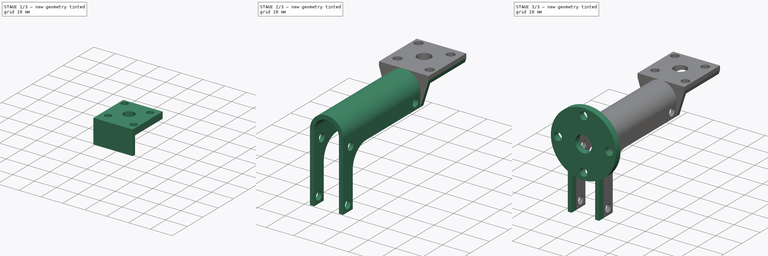
[diagram: build sequence overview — one tinted view per stage of 3, left to right]
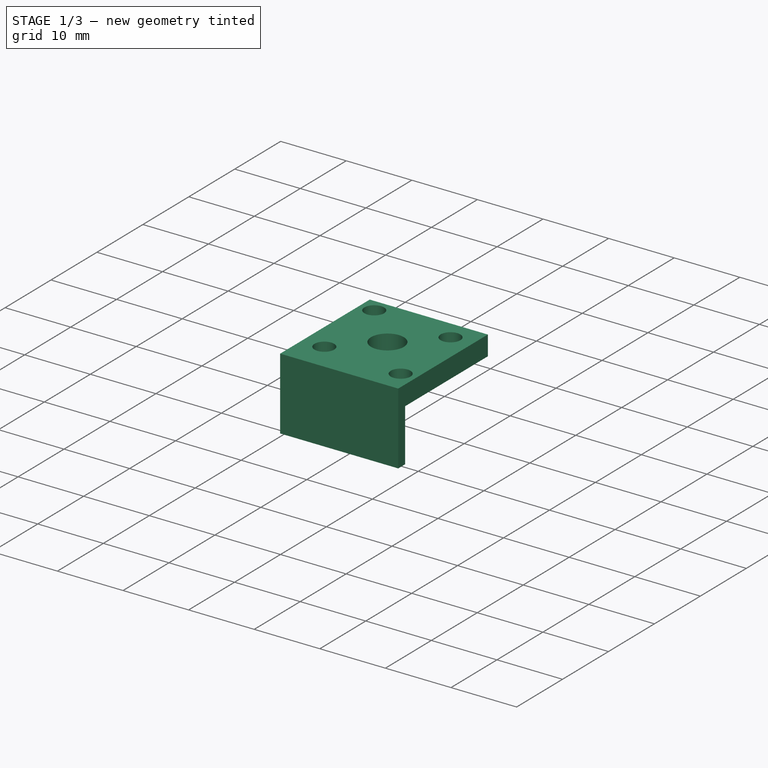
[diagram: stage 1 of 3 — iso view after this stage's code; geometry added in this stage tinted green]
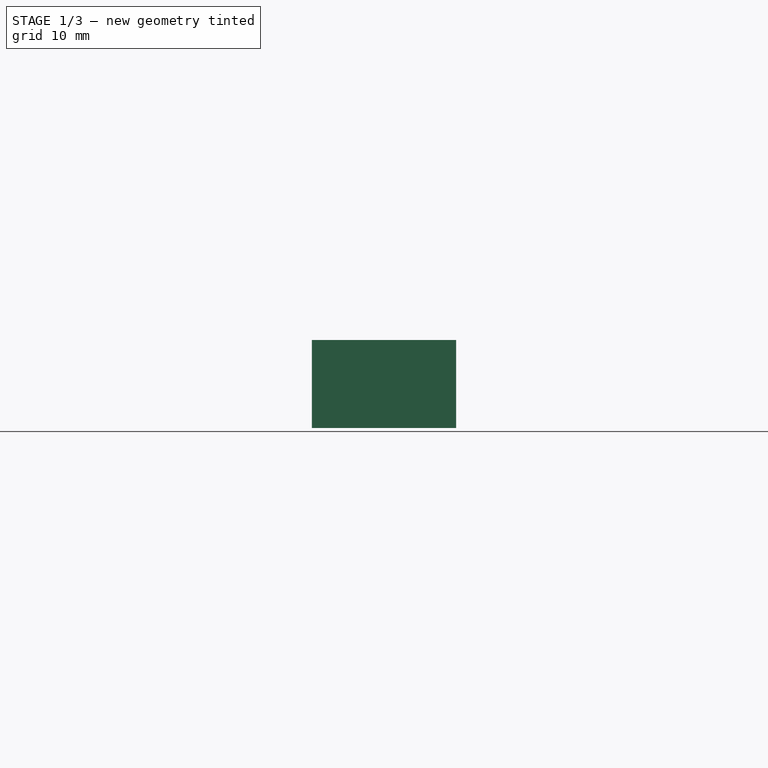
[diagram: stage 1 of 3 — front view after this stage's code; geometry added in this stage tinted green]
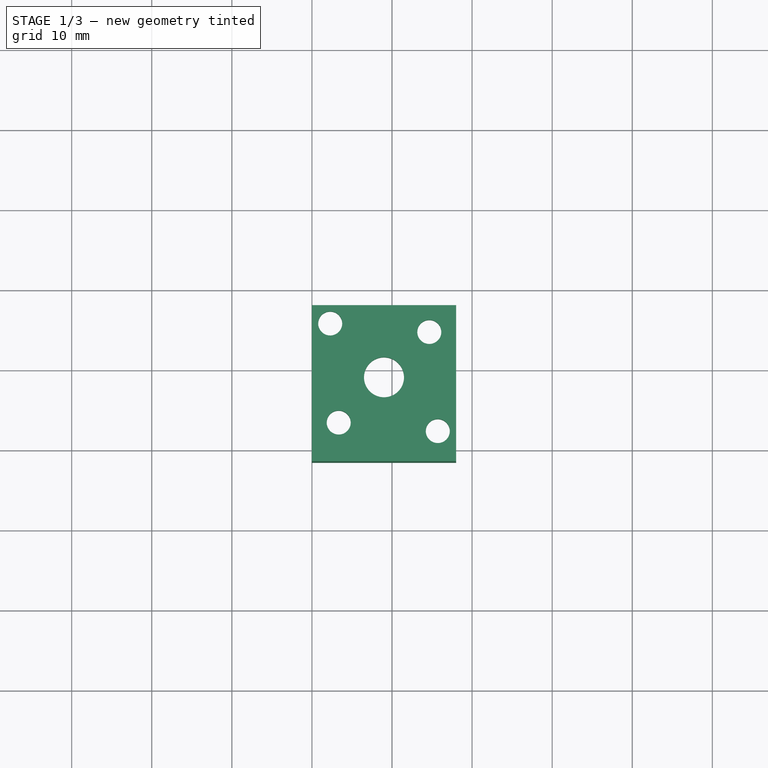
[diagram: stage 1 of 3 — top view after this stage's code; geometry added in this stage tinted green]
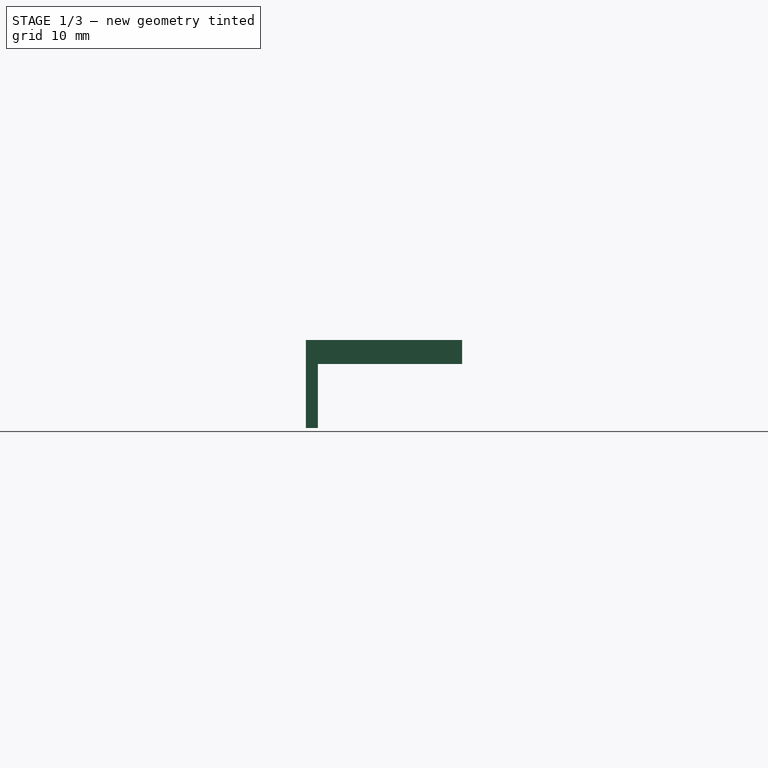
[diagram: stage 1 of 3 — right view after this stage's code; geometry added in this stage tinted green]
FCSTD DOCUMENT  (FreeCAD 0.16R6706 (Git))
Label: Support_20170119
License: All rights reserved
LicenseURL: http://en.wikipedia.org/wiki/All_rights_reserved
objects: Sketcher::SketchObject×7, PartDesign::Pad×4, PartDesign::Pocket×3
note: 21 computed .brp shape members not serialized (recipe doc carries the construction recipe); baked Part::Feature solids carry a one-line shape summary decoded from their .brp

FEATURE [Sketcher::SketchObject] Sketch  label="Sketch_SocleMoteur"
  sketch-geometry (17):
    g0: LineSegment StartX=0 StartY=0 StartZ=0 EndX=18 EndY=0 EndZ=0
    g1: LineSegment StartX=18 StartY=0 StartZ=0 EndX=18 EndY=18 EndZ=0
    g2: LineSegment StartX=18 StartY=18 StartZ=0 EndX=0 EndY=18 EndZ=0
    g3: LineSegment StartX=0 StartY=7.5 StartZ=0 EndX=0 EndY=0 EndZ=0
    g4: LineSegment StartX=0 StartY=10.5 StartZ=0 EndX=0 EndY=18 EndZ=0
    g5: Circle CenterX=2.28249 CenterY=15.7175 CenterZ=0 NormalX=0 NormalY=0 NormalZ=1 Radius=1.5
    g6: Circle CenterX=14.6569 CenterY=14.6569 CenterZ=0 NormalX=0 NormalY=0 NormalZ=1 Radius=1.5
    g7: Circle CenterX=3.34315 CenterY=3.34315 CenterZ=0 NormalX=0 NormalY=0 NormalZ=1 Radius=1.5
    g8: Circle CenterX=15.7175 CenterY=2.28249 CenterZ=0 NormalX=0 NormalY=0 NormalZ=1 Radius=1.5
    g9: GeomPoint [constr] X=9 Y=9 Z=0
    g10: LineSegment [constr] StartX=2.28249 StartY=15.7175 StartZ=0 EndX=9 EndY=9 EndZ=0
    g11: LineSegment [constr] StartX=9 StartY=9 StartZ=0 EndX=14.6569 EndY=14.6569 EndZ=0
    g12: LineSegment [constr] StartX=9 StartY=9 StartZ=0 EndX=3.34315 EndY=3.34315 EndZ=0
    g13: LineSegment [constr] StartX=15.7175 StartY=2.28249 StartZ=0 EndX=9 EndY=9 EndZ=0
    g14: LineSegment [constr] StartX=9 StartY=9 StartZ=0 EndX=30.0425 EndY=9 EndZ=0
    g15: Circle CenterX=9 CenterY=9 CenterZ=0 NormalX=0 NormalY=0 NormalZ=1 Radius=2.5
    g16: LineSegment StartX=0 StartY=10.5 StartZ=0 EndX=0 EndY=7.5 EndZ=0
  constraints (42):
    c: Coincident(g0,g1)
    c: Coincident(g1,g2)
    c: Horizontal(g0)
    c: Horizontal(g2)
    c: Vertical(g1)
    c: Coincident(g0,g-1)
    c: Distance(g2) = 18
    c: Distance(g1) = 18
    c: Coincident(g3,g-1)
    c: Vertical(g3)
    c: Coincident(g4,g2)
    c: Vertical(g4)
    c: Distance(g4) = 7.5
    c: DistanceX(g9,g1) = 9
    c: DistanceY(g9,g1) = 9
    c: Distance(g6,g9) = 8
    c: Radius(g6) = 1.5
    c: Radius(g5) = 1.5
    c: Radius(g7) = 1.5
    c: Radius(g8) = 1.5
    c: Distance(g8,g9) = 9.5
    c: Distance(g7,g9) = 8
    c: Distance(g9,g5) = 9.5
    c: Coincident(g10,g5)
    c: Coincident(g10,g9)
    c: Coincident(g11,g9)
    c: Coincident(g11,g6)
    c: Coincident(g12,g9)
    c: Coincident(g12,g7)
    c: Coincident(g13,g8)
    c: Coincident(g13,g9)
    c: Angle(g10,g12) = 1.5708
    c: Angle(g12,g13) = 1.5708
    c: Angle(g13,g11) = 1.5708
    c: Coincident(g14,g9)
    c: Horizontal(g14)
    c: Angle(g14,g11) = 0.785398
    c: Coincident(g15,g9)
    c: Radius(g15) = 2.5
    c: Coincident(g16,g4)
    c: Vertical(g16)
    c: Coincident(g3,g16)
FEATURE [PartDesign::Pad] Pad  label="SocleMoteur"
  Length = 3
  Length2 = 100
  Sketch = -> Sketch
  Type = 0
FEATURE [Sketcher::SketchObject] Sketch002  label="Sketch_Epaulement"
  ExternalGeometry = -> [Pad]
  Placement = pos=(0,0,0) rot=(1,0,0;1.5708rad)
  Support = -> Pad [Face1]
  sketch-geometry (4):
    g0: LineSegment StartX=0 StartY=3 StartZ=0 EndX=18 EndY=3 EndZ=0
    g1: LineSegment StartX=18 StartY=3 StartZ=0 EndX=18 EndY=-7.99885 EndZ=0
    g2: LineSegment StartX=18 StartY=-7.99885 StartZ=0 EndX=0 EndY=-8 EndZ=0
    g3: LineSegment StartX=0 StartY=-8 StartZ=0 EndX=0 EndY=3 EndZ=0
  constraints (9):
    c: Coincident(g3,g0)
    c: Coincident(g0,g-3)
    c: Coincident(g0,g-3)
    c: Coincident(g0,g1)
    c: Distance(g3) = 11
    c: Coincident(g2,g3)
    c: Coincident(g2,g1)
    c: Distance(g2) = 18
    c: PointOnObject(g-1,g3)
FEATURE [PartDesign::Pad] Pad001  label="Epaulement"
  Length = 1.5
  Length2 = 100
  Sketch = -> Sketch002
  Type = 0
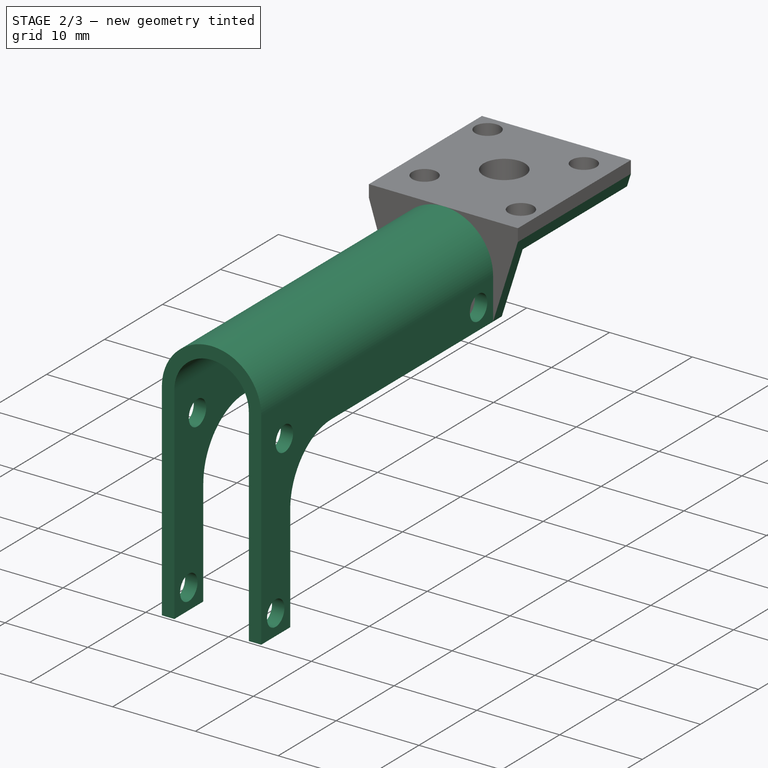
[diagram: stage 2 of 3 — iso view after this stage's code; geometry added in this stage tinted green]
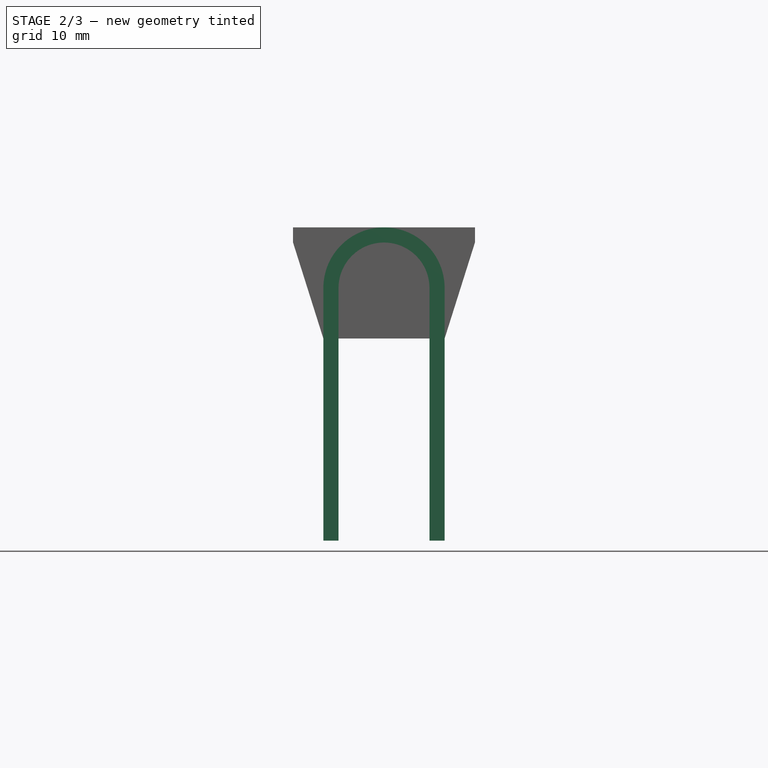
[diagram: stage 2 of 3 — front view after this stage's code; geometry added in this stage tinted green]
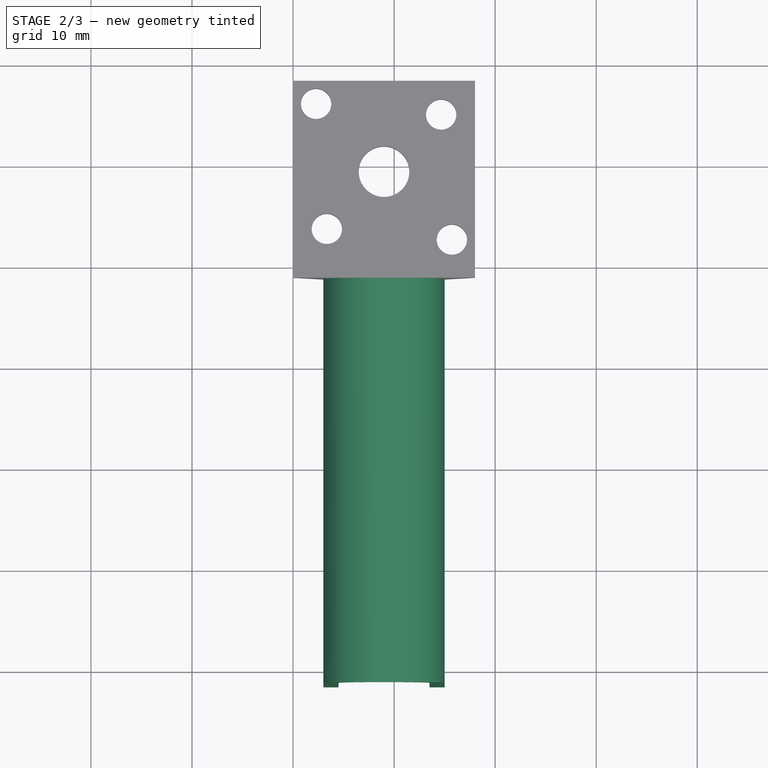
[diagram: stage 2 of 3 — top view after this stage's code; geometry added in this stage tinted green]
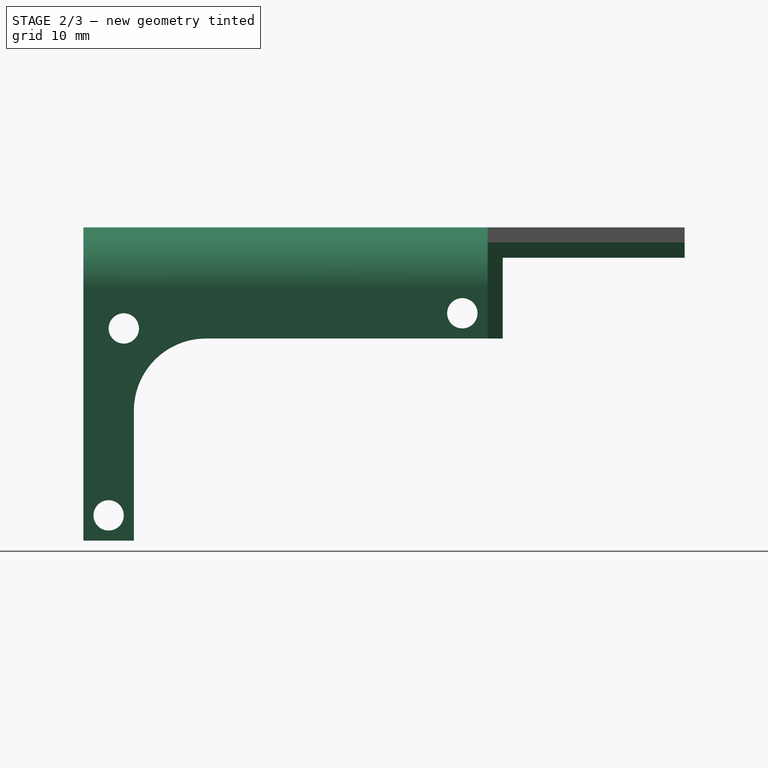
[diagram: stage 2 of 3 — right view after this stage's code; geometry added in this stage tinted green]
FEATURE [Sketcher::SketchObject] Sketch001  label="Sketch_SupportAile"
  ExternalGeometry = -> [Pad001]
  Placement = pos=(0,-1.5,0) rot=(1,0,0;1.5708rad)
  Support = -> Pad001 [Face17]
  sketch-geometry (8):
    g0: ArcOfCircle CenterX=9 CenterY=-3 CenterZ=0 NormalX=0 NormalY=0 NormalZ=1 Radius=4.5 StartAngle=0 EndAngle=3.14159
    g1: ArcOfCircle CenterX=9 CenterY=-3 CenterZ=0 NormalX=0 NormalY=0 NormalZ=1 Radius=6 StartAngle=0 EndAngle=3.14159
    g2: LineSegment StartX=4.5 StartY=-3 StartZ=0 EndX=4.50013 EndY=-28 EndZ=0
    g3: LineSegment StartX=4.50013 StartY=-28 StartZ=0 EndX=3.00013 EndY=-28 EndZ=0
    g4: LineSegment StartX=3.00013 StartY=-28 StartZ=0 EndX=3 EndY=-3 EndZ=0
    g5: LineSegment StartX=15 StartY=-3 StartZ=0 EndX=15.0001 EndY=-28 EndZ=0
    g6: LineSegment StartX=15.0001 StartY=-28 StartZ=0 EndX=13.5001 EndY=-28 EndZ=0
    g7: LineSegment StartX=13.5001 StartY=-28 StartZ=0 EndX=13.5 EndY=-3 EndZ=0
  constraints (24):
    c: Coincident(g0,g2)
    c: Coincident(g0,g7)
    c: Coincident(g1,g4)
    c: Coincident(g1,g5)
    c: Coincident(g2,g3)
    c: Coincident(g3,g4)
    c: Coincident(g5,g6)
    c: Coincident(g6,g7)
    c: DistanceX(g0,g-4) = 9
    c: DistanceY(g0,g-4) = 6
    c: Radius(g1) = 6
    c: Radius(g0) = 4.5
    c: Coincident(g1,g0)
    c: Distance(g0,g-3) = 6
    c: Distance(g1,g-3) = 6
    c: Distance(g0,g-3) = 6
    c: Distance(g1,g-3) = 6
    c: Distance(g5) = 25
    c: Distance(g3) = 1.5
    c: Distance(g6) = 1.5
    c: Distance(g4) = 25
    c: Parallel(g7,g2)
    c: Parallel(g4,g5)
    c: Parallel(g-3,g3)
FEATURE [PartDesign::Pad] Pad002  label="SupportAile"
  Length = 40
  Length2 = 100
  Sketch = -> Sketch001
  Type = 0
FEATURE [Sketcher::SketchObject] Sketch005  label="Sketch_AlegementSupportAile"
  ExternalGeometry = -> [Pad002]
  Placement = pos=(15,0,7.70469e-05) rot=(0.577349,0.577349,0.577352;2.09439rad)
  Support = -> Pad002 [Face25]
  sketch-geometry (8):
    g0: LineSegment StartX=-36.5 StartY=-28.0001 StartZ=0 EndX=-36.5 EndY=-15.137 EndZ=0
    g1: LineSegment StartX=-29.3632 StartY=-8.00008 StartZ=0 EndX=-1.5 EndY=-8.00008 EndZ=0
    g2: LineSegment StartX=-36.5 StartY=-28.0001 StartZ=0 EndX=-1.5 EndY=-28.0001 EndZ=0
    g3: LineSegment StartX=-1.5 StartY=-28.0001 StartZ=0 EndX=-1.5 EndY=-8.00008 EndZ=0
    g4: ArcOfCircle CenterX=-29.3632 CenterY=-15.1369 CenterZ=0 NormalX=0 NormalY=0 NormalZ=1 Radius=7.13684 StartAngle=1.5708 EndAngle=3.1416
    g5: Circle CenterX=-4 CenterY=-5.50008 CenterZ=0 NormalX=0 NormalY=0 NormalZ=1 Radius=1.5
    g6: Circle CenterX=-37.5 CenterY=-7.00008 CenterZ=0 NormalX=0 NormalY=0 NormalZ=1 Radius=1.5
    g7: Circle CenterX=-39 CenterY=-25.5001 CenterZ=0 NormalX=0 NormalY=0 NormalZ=1 Radius=1.5
  constraints (22):
    c: Coincident(g0,g2)
    c: Coincident(g1,g3)
    c: Coincident(g2,g3)
    c: Coincident(g2,g-4)
    c: Distance(g-5,g1) = 5
    c: Parallel(g1,g-3)
    c: Parallel(g0,g-4)
    c: Distance(g0,g-3) = 5
    c: PointOnObject(g0,g-3)
    c: Tangent(g4,g0)
    c: Coincident(g4,g0)
    c: Tangent(g4,g1)
    c: Coincident(g4,g1)
    c: Radius(g7) = 1.5
    c: DistanceY(g-3,g7) = 2.5
    c: DistanceX(g7,g0) = 2.5
    c: DistanceY(g6,g-5) = 4
    c: DistanceX(g-5,g6) = 4
    c: Radius(g6) = 1.5
    c: Radius(g5) = 1.5
    c: DistanceY(g5,g-5) = 2.5
    c: DistanceX(g5,g-5) = 2.5
FEATURE [PartDesign::Pocket] Pocket  label="AlegementSupportAile"
  Length = 13
  Sketch = -> Sketch005
  Type = 0
FEATURE [Sketcher::SketchObject] Sketch006  label="Sketch_EpaulementBiseau"
  ExternalGeometry = -> [Pad001]
  Placement = pos=(0,-1.5,0) rot=(1,0,0;1.5708rad)
  Support = -> Pocket [Face21]
  sketch-geometry (6):
    g0: LineSegment StartX=0 StartY=1.5 StartZ=0 EndX=3 EndY=-7.99981 EndZ=0
    g1: LineSegment StartX=3 StartY=-7.99981 StartZ=0 EndX=0 EndY=-8 EndZ=0
    g2: LineSegment StartX=0 StartY=-8 StartZ=0 EndX=0 EndY=1.5 EndZ=0
    g3: LineSegment StartX=18 StartY=-7.99885 StartZ=0 EndX=15 EndY=-7.99904 EndZ=0
    g4: LineSegment StartX=15 StartY=-7.99904 StartZ=0 EndX=18 EndY=1.5 EndZ=0
    g5: LineSegment StartX=18 StartY=1.5 StartZ=0 EndX=18 EndY=-7.99885 EndZ=0
  constraints (12):
    c: Coincident(g5,g3)
    c: Coincident(g4,g3)
    c: Coincident(g4,g5)
    c: PointOnObject(g4,g-4)
    c: Distance(g-4,g4) = 1.5
    c: Distance(g3,g3) = 3
    c: Coincident(g1,g0)
    c: Coincident(g2,g1)
    c: Coincident(g2,g0)
    c: PointOnObject(g0,g-2)
    c: Distance(g-3,g0) = 1.5
    c: Distance(g1,g0) = 3
FEATURE [PartDesign::Pocket] Pocket001
  Length = 25
  Sketch = -> Sketch006
  Type = 0
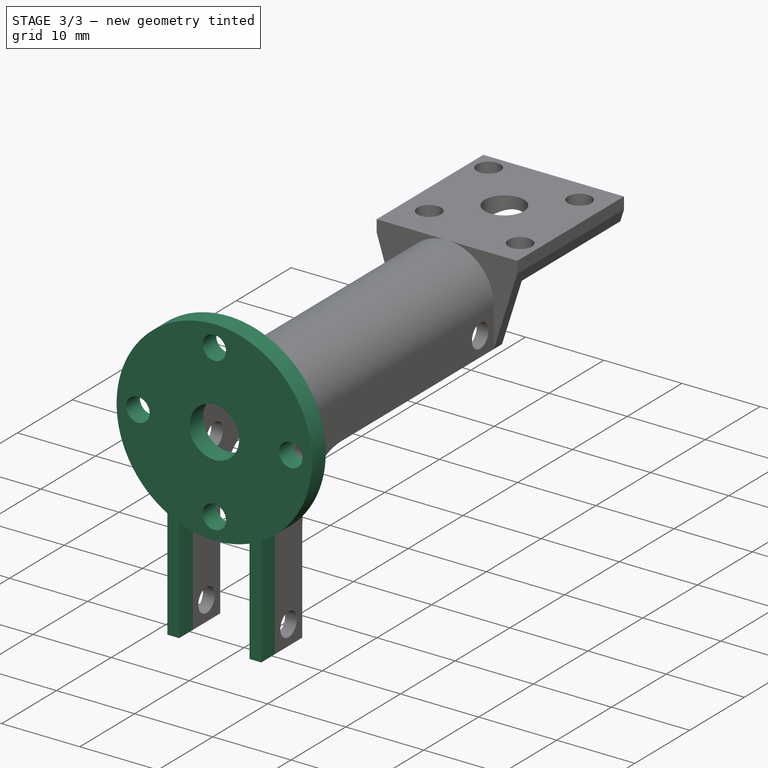
[diagram: stage 3 of 3 — iso view after this stage's code; geometry added in this stage tinted green]
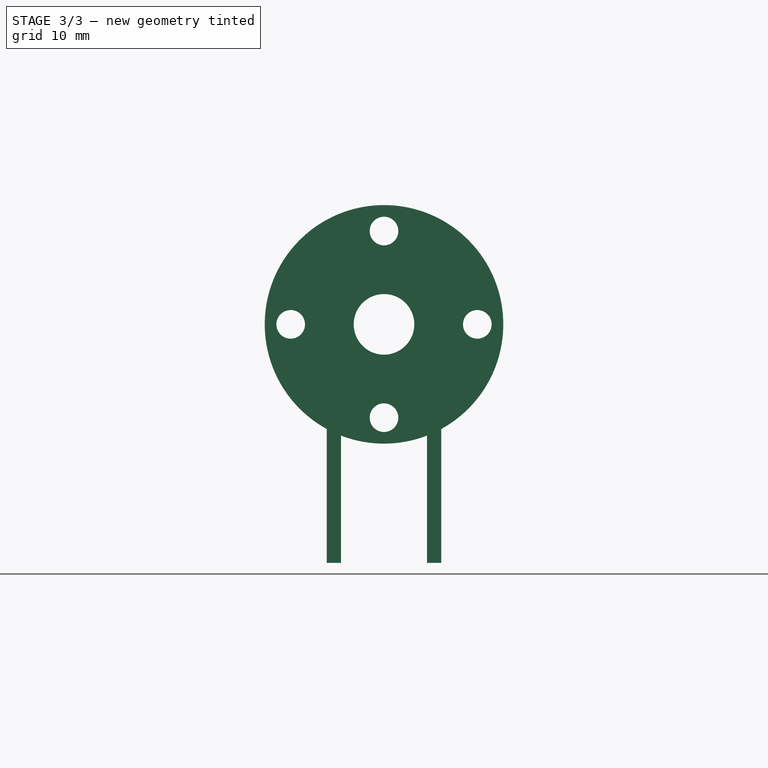
[diagram: stage 3 of 3 — front view after this stage's code; geometry added in this stage tinted green]
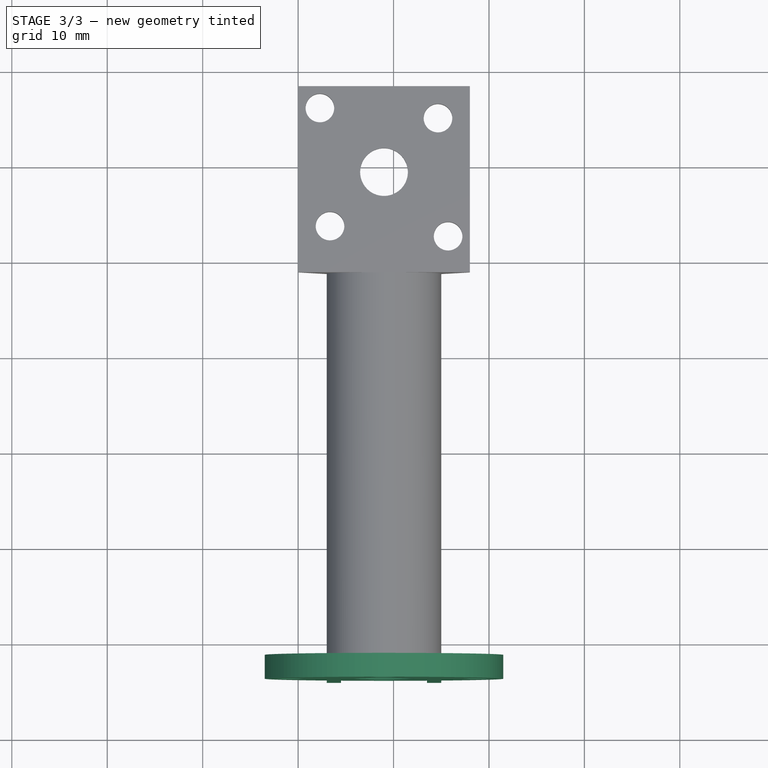
[diagram: stage 3 of 3 — top view after this stage's code; geometry added in this stage tinted green]
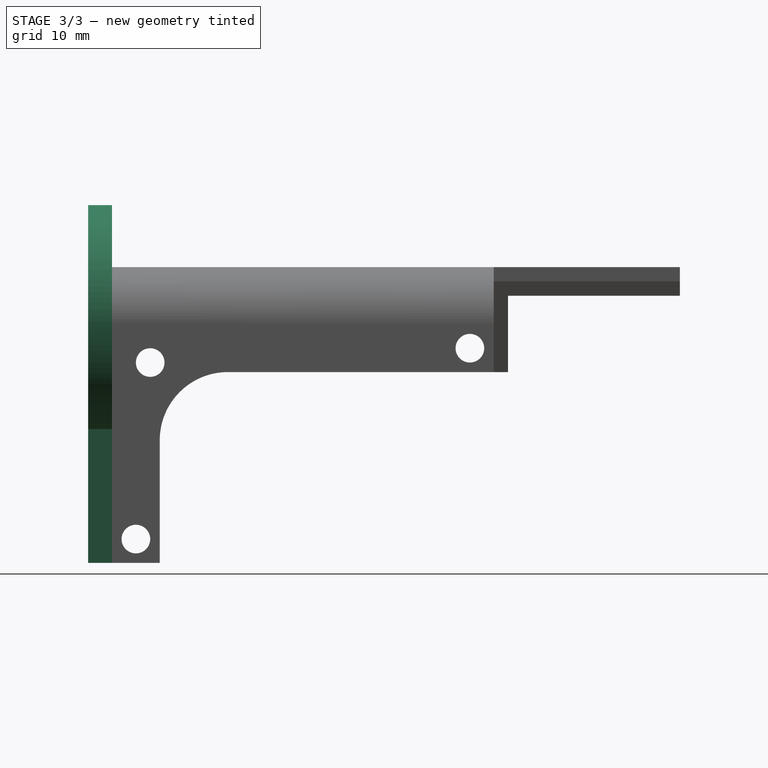
[diagram: stage 3 of 3 — right view after this stage's code; geometry added in this stage tinted green]
FEATURE [Sketcher::SketchObject] Sketch008
  ExternalGeometry = -> [Pocket001]
  Placement = pos=(0,-1.5,0) rot=(1,0,0;1.5708rad)
  Support = -> Pocket001 [Face22]
  sketch-geometry (4):
    g0: LineSegment StartX=4.5 StartY=-2.99971 StartZ=0 EndX=4.50003 EndY=-7.99971 EndZ=0
    g1: LineSegment StartX=13.5 StartY=-2.99914 StartZ=0 EndX=13.5 EndY=-7.99914 EndZ=0
    g2: ArcOfCircle CenterX=9 CenterY=-3 CenterZ=0 NormalX=0 NormalY=0 NormalZ=1 Radius=4.5 StartAngle=0.000192156 EndAngle=3.14153
    g3: LineSegment StartX=4.50003 StartY=-7.99971 StartZ=0 EndX=13.5 EndY=-7.99914 EndZ=0
  constraints (11):
    c: Coincident(g0,g3)
    c: Coincident(g3,g1)
    c: Coincident(g2,g1)
    c: Coincident(g2,g0)
    c: DistanceX(g2,g-4) = 9
    c: Radius(g2) = 4.5
    c: DistanceY(g2,g-4) = 6
    c: Coincident(g1,g-3)
    c: Coincident(g0,g-3)
    c: Distance(g0) = 5
    c: Distance(g1) = 5
FEATURE [PartDesign::Pocket] Pocket002
  Length = 25
  Sketch = -> Sketch008
  Type = 0
FEATURE [Sketcher::SketchObject] Sketch007  label="Sketch_SupportHub"
  ExternalGeometry = -> [Pocket002]
  Placement = pos=(0,-41.5,0) rot=(1,0,0;1.5708rad)
  Support = -> Pocket002 [Face29]
  sketch-geometry (15):
    g0: Circle CenterX=9 CenterY=-3 CenterZ=0 NormalX=0 NormalY=0 NormalZ=1 Radius=3.175
    g1: Circle CenterX=-0.779 CenterY=-3 CenterZ=0 NormalX=0 NormalY=0 NormalZ=1 Radius=1.5
    g2: Circle CenterX=9 CenterY=-12.779 CenterZ=0 NormalX=0 NormalY=0 NormalZ=1 Radius=1.5
    g3: Circle CenterX=9 CenterY=6.779 CenterZ=0 NormalX=0 NormalY=0 NormalZ=1 Radius=1.5
    g4: Circle CenterX=18.779 CenterY=-3 CenterZ=0 NormalX=0 NormalY=0 NormalZ=1 Radius=1.5
    g5: LineSegment [constr] StartX=9 StartY=-12.8878 StartZ=0 EndX=9 EndY=6.779 EndZ=0
    g6: LineSegment [constr] StartX=-0.779 StartY=-3 StartZ=0 EndX=18.779 EndY=-3 EndZ=0
    g7: ArcOfCircle CenterX=9 CenterY=-3 CenterZ=0 NormalX=0 NormalY=0 NormalZ=1 Radius=12.5 StartAngle=5.21305 EndAngle=10.4949
    g8: LineSegment StartX=3.00006 StartY=-13.9659 StartZ=0 EndX=3.00013 EndY=-28 EndZ=0
    g9: LineSegment StartX=15.0001 StartY=-13.9658 StartZ=0 EndX=15.0001 EndY=-28 EndZ=0
    g10: LineSegment StartX=4.50006 StartY=-14.6619 StartZ=0 EndX=4.50013 EndY=-28 EndZ=0
    g11: LineSegment StartX=13.5001 StartY=-14.6619 StartZ=0 EndX=13.5001 EndY=-28 EndZ=0
    g12: LineSegment StartX=3.00013 StartY=-28 StartZ=0 EndX=4.50013 EndY=-28 EndZ=0
    g13: LineSegment StartX=13.5001 StartY=-28 StartZ=0 EndX=15.0001 EndY=-28 EndZ=0
    g14: ArcOfCircle CenterX=9 CenterY=-3 CenterZ=0 NormalX=0 NormalY=0 NormalZ=1 Radius=12.5 StartAngle=4.34413 EndAngle=5.08066
  constraints (38):
    c: Coincident(g7,g8)
    c: Coincident(g7,g9)
    c: Coincident(g8,g12)
    c: Coincident(g9,g13)
    c: Coincident(g10,g12)
    c: Coincident(g11,g13)
    c: PointOnObject(g7,g-3)
    c: PointOnObject(g10,g-4)
    c: PointOnObject(g11,g-5)
    c: PointOnObject(g7,g-6)
    c: Coincident(g-3,g8)
    c: Coincident(g-4,g10)
    c: Coincident(g-5,g11)
    c: Coincident(g-6,g9)
    c: Radius(g7) = 12.5
    c: Radius(g0) = 3.175
    c: Radius(g4) = 1.5
    c: Radius(g2) = 1.5
    c: Radius(g1) = 1.5
    c: Radius(g3) = 1.5
    c: Distance(g4,g1) = 19.558
    c: Distance(g3,g2) = 19.558
    c: PointOnObject(g0,g6)
    c: Symmetric(g2,g3,g6)
    c: Radius(g14) = 12.5
    c: Coincident(g5,g3)
    c: Coincident(g7,g0)
    c: PointOnObject(g14,g5)
    c: PointOnObject(g0,g5)
    c: PointOnObject(g14,g6)
    c: Coincident(g6,g1)
    c: Coincident(g4,g6)
    c: Symmetric(g1,g4,g5)
    c: Coincident(g14,g11)
    c: Coincident(g14,g10)
    c: PointOnObject(g-5,g6)
    c: PointOnObject(g-4,g6)
    c: DistanceX(g0,g-5) = 4.5
FEATURE [PartDesign::Pad] Pad003
  Length = 2.5
  Length2 = 100
  Sketch = -> Sketch007
  Type = 0
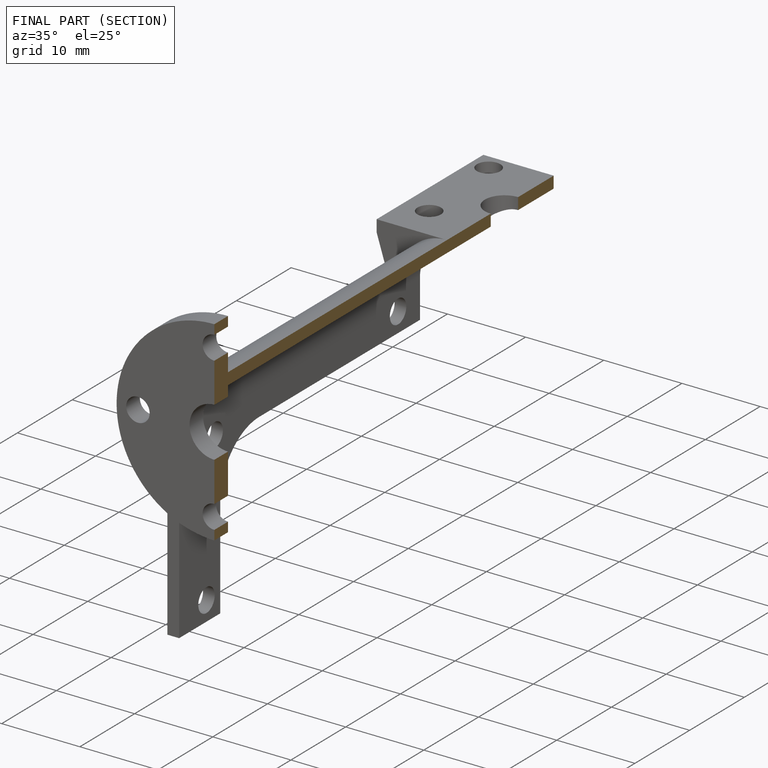
[diagram: finished part — half-section view (interior)]
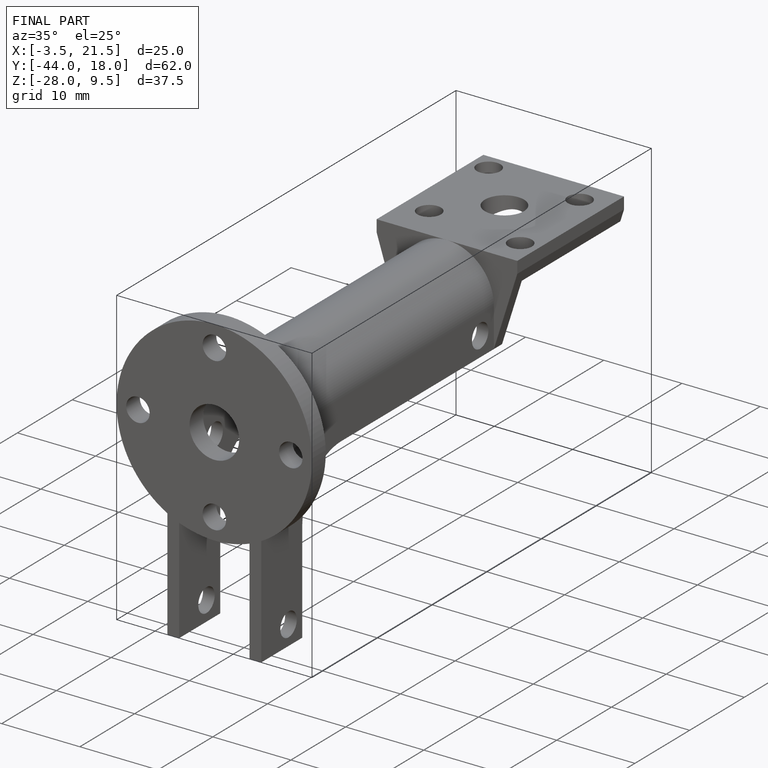
[diagram: finished part — iso view with bounding-box wireframe]
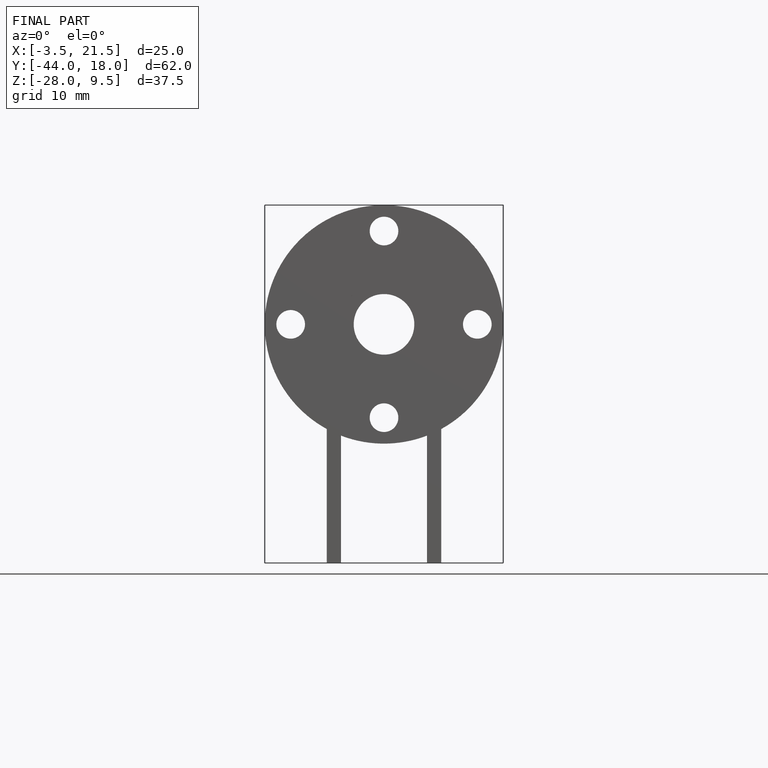
[diagram: finished part — front view with bounding-box wireframe]
